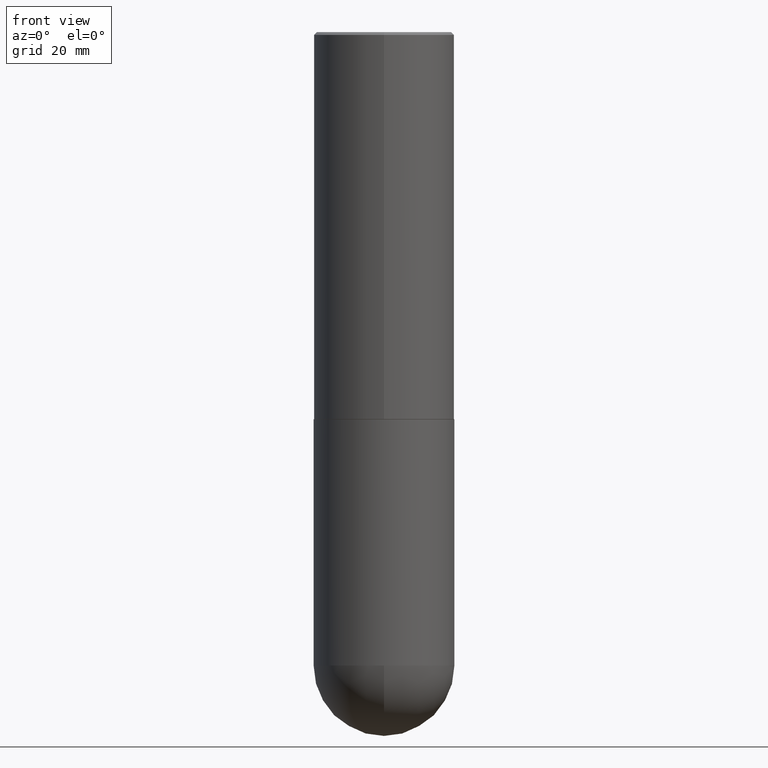
[diagram: clean part render]
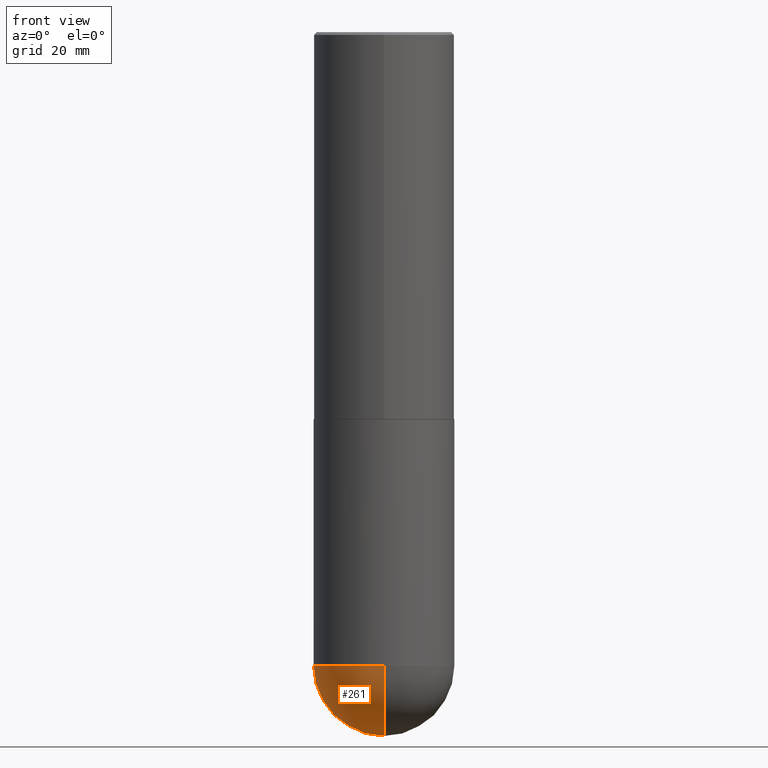
[diagram: same view with one face highlighted and labeled with its STEP entity id]
A machine part, front view. The second image highlights one B-rep face of the part: STEP entity #261.
In plain terms, the highlighted spherical surface has radius 12.7 mm.
Its self-contained STEP definition (entity closure, byte-faithful):
#1 = DIRECTION ( 'NONE',  ( 6.982962677686266711E-15, 1.000000000000000000, 0.000000000000000000 ) ) ;
#5 = AXIS2_PLACEMENT_3D ( 'NONE', #356, #359, #176 ) ;
#15 = FACE_OUTER_BOUND ( 'NONE', #203, .T. ) ;
#41 = DIRECTION ( 'NONE',  ( 1.000000000000000000, -6.982962677686265922E-15, 4.883557194083112340E-29 ) ) ;
#43 = SPHERICAL_SURFACE ( 'NONE', #108, 0.5000000000000002220 ) ;
#64 = EDGE_CURVE ( 'NONE', #88, #126, #345, .T. ) ;
#66 = DIRECTION ( 'NONE',  ( 1.000000000000000000, -6.982962677686262766E-15, 0.000000000000000000 ) ) ;
#68 = VERTEX_POINT ( 'NONE', #74 ) ;
#74 = CARTESIAN_POINT ( 'NONE',  ( 1.191760341024128201E-28, -1.790097289237709482E-14, -5.000000000000000000 ) ) ;
#86 = CIRCLE ( 'NONE', #190, 0.5000000000000000000 ) ;
#88 = VERTEX_POINT ( 'NONE', #234 ) ;
#94 = ORIENTED_EDGE ( 'NONE', *, *, #221, .F. ) ;
#102 = CIRCLE ( 'NONE', #5, 0.5000000000000002220 ) ;
#105 = DIRECTION ( 'NONE',  ( 6.982962677686265922E-15, 1.000000000000000000, -3.278217592397114284E-15 ) ) ;
#108 = AXIS2_PLACEMENT_3D ( 'NONE', #144, #367, #105 ) ;
#120 = VERTEX_POINT ( 'NONE', #249 ) ;
#123 = ORIENTED_EDGE ( 'NONE', *, *, #215, .T. ) ;
#126 = VERTEX_POINT ( 'NONE', #129 ) ;
#129 = CARTESIAN_POINT ( 'NONE',  ( -3.552713678800393250E-15, -0.5000000000000160982, -4.499999999999998224 ) ) ;
#144 = CARTESIAN_POINT ( 'NONE',  ( 1.067348984991922956E-28, -1.618584839293420562E-14, -4.500000000000000000 ) ) ;
#152 = DIRECTION ( 'NONE',  ( 1.000000000000000000, -6.982962677686262766E-15, 0.000000000000000000 ) ) ;
#176 = DIRECTION ( 'NONE',  ( -7.105427357601001859E-15, -1.000000000000000000, 0.000000000000000000 ) ) ;
#179 = EDGE_CURVE ( 'NONE', #120, #88, #86, .T. ) ;
#190 = AXIS2_PLACEMENT_3D ( 'NONE', #352, #388, #66 ) ;
#203 = EDGE_LOOP ( 'NONE', ( #94, #123, #239, #322 ) ) ;
#215 = EDGE_CURVE ( 'NONE', #68, #126, #102, .T. ) ;
#221 = EDGE_CURVE ( 'NONE', #68, #120, #339, .T. ) ;
#231 = CARTESIAN_POINT ( 'NONE',  ( 1.067348984991922956E-28, -1.618584839293420562E-14, -4.500000000000000000 ) ) ;
#234 = CARTESIAN_POINT ( 'NONE',  ( -0.5000000000000000000, -9.103906174505904815E-15, -4.499999999999999112 ) ) ;
#239 = ORIENTED_EDGE ( 'NONE', *, *, #64, .F. ) ;
#249 = CARTESIAN_POINT ( 'NONE',  ( 3.491481338843242218E-15, 0.4999999999999841238, -4.500000000000000888 ) ) ;
#261 = ADVANCED_FACE ( 'NONE', ( #15 ), #43, .T. ) ;
#268 = DIRECTION ( 'NONE',  ( -2.445468806185136597E-29, 3.491481338843145583E-15, 1.000000000000000000 ) ) ;
#313 = CARTESIAN_POINT ( 'NONE',  ( 1.100460962783311244E-28, -1.571166602479415374E-14, -4.499999999999999112 ) ) ;
#322 = ORIENTED_EDGE ( 'NONE', *, *, #179, .F. ) ;
#339 = CIRCLE ( 'NONE', #386, 0.5000000000000002220 ) ;
#345 = CIRCLE ( 'NONE', #370, 0.5000000000000000000 ) ;
#352 = CARTESIAN_POINT ( 'NONE',  ( 1.100460962783311244E-28, -1.571166602479415374E-14, -4.499999999999999112 ) ) ;
#356 = CARTESIAN_POINT ( 'NONE',  ( 1.067348984991922956E-28, -1.618584839293420562E-14, -4.500000000000000000 ) ) ;
#359 = DIRECTION ( 'NONE',  ( -1.000000000000000000, 7.105427357601001070E-15, -4.926315508542082329E-29 ) ) ;
#367 = DIRECTION ( 'NONE',  ( -1.000000000000000000, 6.982962677686265922E-15, -4.883557194083113462E-29 ) ) ;
#370 = AXIS2_PLACEMENT_3D ( 'NONE', #313, #268, #152 ) ;
#386 = AXIS2_PLACEMENT_3D ( 'NONE', #231, #41, #1 ) ;
#388 = DIRECTION ( 'NONE',  ( -2.445468806185136597E-29, 3.491481338843145583E-15, 1.000000000000000000 ) ) ;